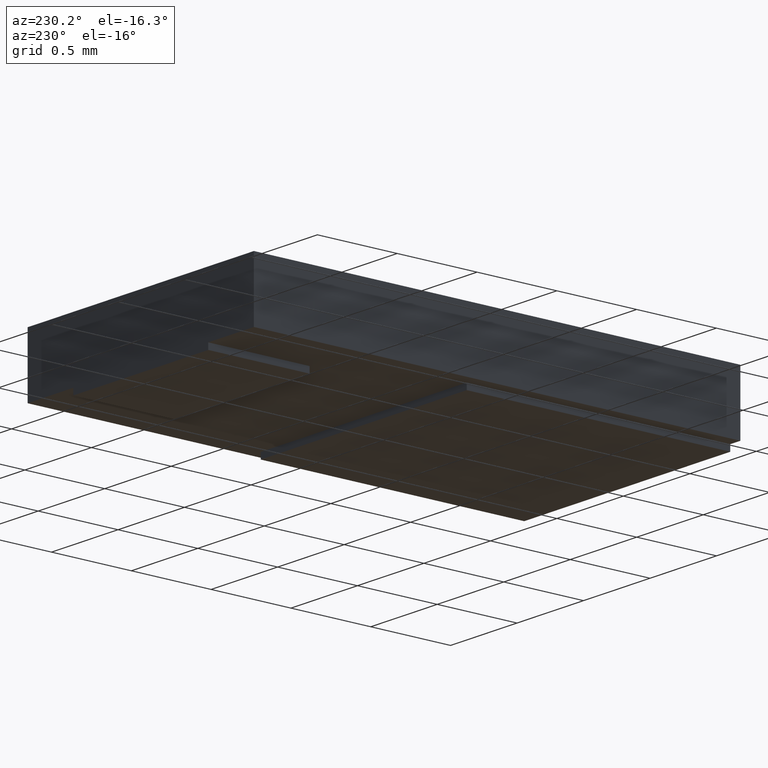
[diagram: clean part render]
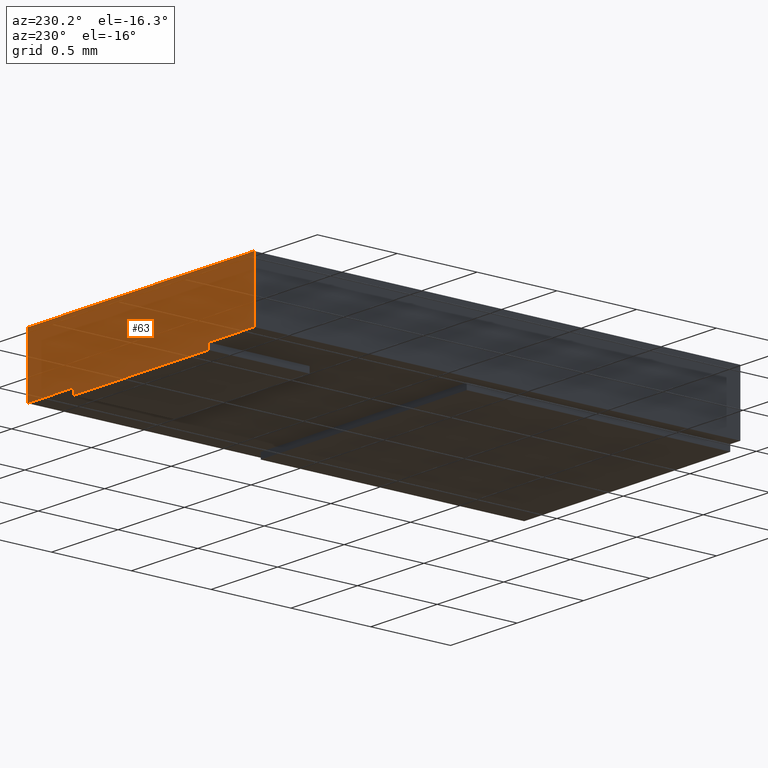
[diagram: same view with one face highlighted and labeled with its STEP entity id]
A machine part, auxiliary view. The second image highlights one B-rep face of the part: STEP entity #63.
In plain terms, the highlighted planar face has unit normal (0, -1, 0).
Its self-contained STEP definition (entity closure, byte-faithful):
#17 = LINE ( 'NONE', #81, #487 ) ;
#42 = CARTESIAN_POINT ( 'NONE',  ( 0.000000000000000000, 0.05999999999994543032, 0.01649999999999999731 ) ) ;
#63 = ADVANCED_FACE ( 'NONE', ( #420 ), #614, .F. ) ;
#81 = CARTESIAN_POINT ( 'NONE',  ( 0.01999973361464313371, 0.06000000000003780087, 0.000000000000000000 ) ) ;
#90 = EDGE_CURVE ( 'NONE', #398, #114, #300, .T. ) ;
#114 = VERTEX_POINT ( 'NONE', #560 ) ;
#138 = ORIENTED_EDGE ( 'NONE', *, *, #236, .F. ) ;
#149 = VERTEX_POINT ( 'NONE', #528 ) ;
#153 = CARTESIAN_POINT ( 'NONE',  ( 0.01999973361464313371, 0.06000000000003780087, 0.09064170441960506253 ) ) ;
#157 = CARTESIAN_POINT ( 'NONE',  ( 0.01999973361464313371, 0.06000000000003780087, 0.001500000000000004585 ) ) ;
#164 = DIRECTION ( 'NONE',  ( -0.000000000000000000, -0.000000000000000000, -1.000000000000000000 ) ) ;
#182 = CARTESIAN_POINT ( 'NONE',  ( -0.01999973361463958099, 0.06000000000003780087, 0.09064170441960506253 ) ) ;
#200 = EDGE_CURVE ( 'NONE', #398, #293, #263, .T. ) ;
#201 = DIRECTION ( 'NONE',  ( 0.000000000000000000, -0.000000000000000000, -1.000000000000000000 ) ) ;
#213 = ORIENTED_EDGE ( 'NONE', *, *, #629, .T. ) ;
#215 = EDGE_CURVE ( 'NONE', #462, #287, #273, .T. ) ;
#216 = LINE ( 'NONE', #624, #626 ) ;
#217 = VERTEX_POINT ( 'NONE', #480 ) ;
#235 = CARTESIAN_POINT ( 'NONE',  ( -0.03350000000000363798, 0.05999999999994543032, 0.1539372584126108556 ) ) ;
#236 = EDGE_CURVE ( 'NONE', #217, #384, #286, .T. ) ;
#245 = ORIENTED_EDGE ( 'NONE', *, *, #215, .T. ) ;
#247 = DIRECTION ( 'NONE',  ( 1.000000000000000000, 0.000000000000000000, -0.000000000000000000 ) ) ;
#250 = VECTOR ( 'NONE', #325, 39.37007874015748143 ) ;
#263 = LINE ( 'NONE', #235, #250 ) ;
#264 = EDGE_CURVE ( 'NONE', #114, #149, #216, .T. ) ;
#273 = LINE ( 'NONE', #444, #593 ) ;
#279 = ORIENTED_EDGE ( 'NONE', *, *, #323, .F. ) ;
#283 = AXIS2_PLACEMENT_3D ( 'NONE', #153, #364, #201 ) ;
#285 = DIRECTION ( 'NONE',  ( -1.000000000000000000, 0.000000000000000000, 0.000000000000000000 ) ) ;
#286 = LINE ( 'NONE', #182, #438 ) ;
#287 = VERTEX_POINT ( 'NONE', #554 ) ;
#291 = LINE ( 'NONE', #602, #635 ) ;
#293 = VERTEX_POINT ( 'NONE', #356 ) ;
#299 = CARTESIAN_POINT ( 'NONE',  ( -0.01999973361463958099, 0.06000000000003780087, 0.000000000000000000 ) ) ;
#300 = LINE ( 'NONE', #42, #304 ) ;
#304 = VECTOR ( 'NONE', #247, 39.37007874015748143 ) ;
#310 = ORIENTED_EDGE ( 'NONE', *, *, #200, .F. ) ;
#323 = EDGE_CURVE ( 'NONE', #293, #217, #291, .T. ) ;
#325 = DIRECTION ( 'NONE',  ( -0.000000000000000000, -0.000000000000000000, -1.000000000000000000 ) ) ;
#356 = CARTESIAN_POINT ( 'NONE',  ( -0.03350000000000363798, 0.05999999999994543032, 0.001500000000000000031 ) ) ;
#364 = DIRECTION ( 'NONE',  ( 0.000000000000000000, -1.000000000000000000, 0.000000000000000000 ) ) ;
#384 = VERTEX_POINT ( 'NONE', #299 ) ;
#398 = VERTEX_POINT ( 'NONE', #447 ) ;
#402 = DIRECTION ( 'NONE',  ( 1.000000000000000000, 0.000000000000000000, -0.000000000000000000 ) ) ;
#420 = FACE_OUTER_BOUND ( 'NONE', #449, .T. ) ;
#424 = ORIENTED_EDGE ( 'NONE', *, *, #482, .F. ) ;
#426 = DIRECTION ( 'NONE',  ( -0.000000000000000000, -0.000000000000000000, -1.000000000000000000 ) ) ;
#438 = VECTOR ( 'NONE', #491, 39.37007874015748143 ) ;
#444 = CARTESIAN_POINT ( 'NONE',  ( 0.01999973361464313371, 0.06000000000003780087, 0.09064170441960506253 ) ) ;
#447 = CARTESIAN_POINT ( 'NONE',  ( -0.03350000000000363798, 0.05999999999994543032, 0.01649999999999999731 ) ) ;
#449 = EDGE_LOOP ( 'NONE', ( #138, #279, #310, #553, #477, #424, #245, #213 ) ) ;
#462 = VERTEX_POINT ( 'NONE', #157 ) ;
#470 = DIRECTION ( 'NONE',  ( 1.000000000000000000, 0.000000000000000000, -0.000000000000000000 ) ) ;
#474 = LINE ( 'NONE', #623, #541 ) ;
#477 = ORIENTED_EDGE ( 'NONE', *, *, #264, .T. ) ;
#480 = CARTESIAN_POINT ( 'NONE',  ( -0.01999973361463958099, 0.06000000000003780087, 0.001500000000000004585 ) ) ;
#482 = EDGE_CURVE ( 'NONE', #462, #149, #474, .T. ) ;
#487 = VECTOR ( 'NONE', #285, 39.37007874015748143 ) ;
#491 = DIRECTION ( 'NONE',  ( -0.000000000000000000, -0.000000000000000000, -1.000000000000000000 ) ) ;
#528 = CARTESIAN_POINT ( 'NONE',  ( 0.03350000000000363798, 0.05999999999994543032, 0.001500000000000000031 ) ) ;
#541 = VECTOR ( 'NONE', #470, 39.37007874015748143 ) ;
#553 = ORIENTED_EDGE ( 'NONE', *, *, #90, .T. ) ;
#554 = CARTESIAN_POINT ( 'NONE',  ( 0.01999973361464313371, 0.06000000000003780087, 0.000000000000000000 ) ) ;
#560 = CARTESIAN_POINT ( 'NONE',  ( 0.03350000000000363798, 0.05999999999994543032, 0.01649999999999999731 ) ) ;
#593 = VECTOR ( 'NONE', #426, 39.37007874015748143 ) ;
#602 = CARTESIAN_POINT ( 'NONE',  ( 0.000000000000000000, 0.05999999999994543032, 0.001500000000000000031 ) ) ;
#614 = PLANE ( 'NONE',  #283 ) ;
#623 = CARTESIAN_POINT ( 'NONE',  ( 0.000000000000000000, 0.05999999999994543032, 0.001500000000000000031 ) ) ;
#624 = CARTESIAN_POINT ( 'NONE',  ( 0.03350000000000363798, 0.05999999999994543032, 0.1539372584126108556 ) ) ;
#626 = VECTOR ( 'NONE', #164, 39.37007874015748143 ) ;
#629 = EDGE_CURVE ( 'NONE', #287, #384, #17, .T. ) ;
#635 = VECTOR ( 'NONE', #402, 39.37007874015748143 ) ;